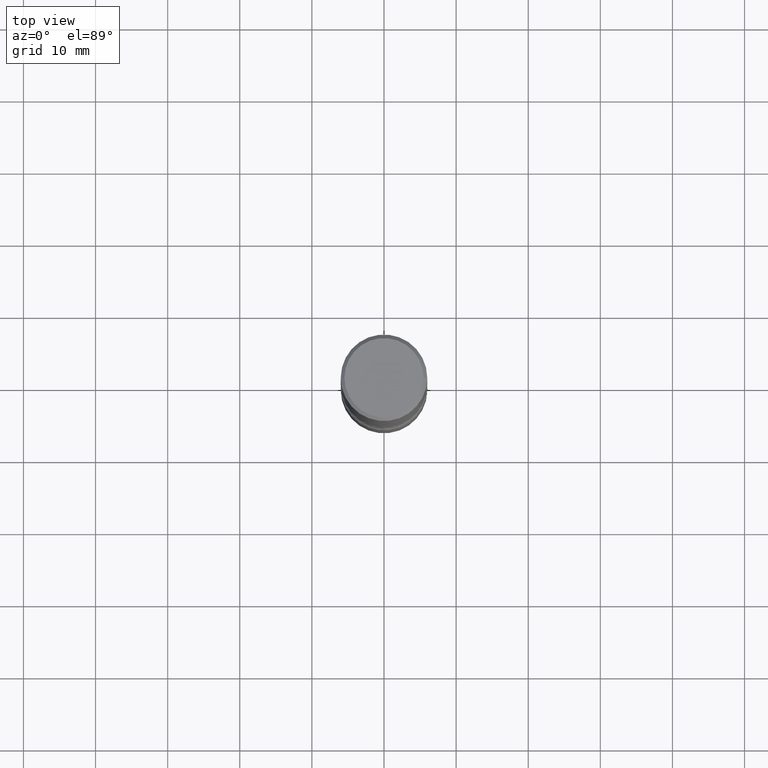
[diagram: clean part render]
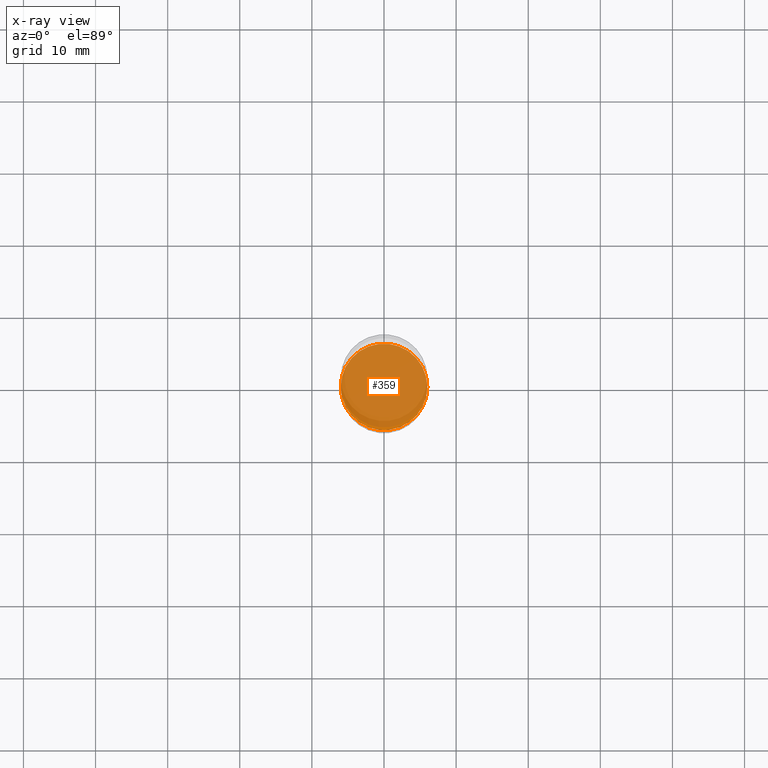
[diagram: x-ray — body ghosted, one internal face saturated and labeled with its STEP entity id]
A machine part, top view, then the same camera in x-ray: the body is ghosted and one INTERNAL B-rep face — a face not visible from any outside direction — is saturated and labeled: STEP entity #359.
In plain terms, the highlighted planar face has unit normal (0, -0, -1).
Its self-contained STEP definition (entity closure, byte-faithful):
#5 = FACE_OUTER_BOUND ( 'NONE', #324, .T. ) ;
#14 = ORIENTED_EDGE ( 'NONE', *, *, #427, .T. ) ;
#25 = DIRECTION ( 'NONE',  ( -2.445468806185136597E-29, 3.491481338843145583E-15, 1.000000000000000000 ) ) ;
#44 = DIRECTION ( 'NONE',  ( -1.000000000000000000, 6.982962677686265922E-15, -4.876176775795935793E-29 ) ) ;
#63 = AXIS2_PLACEMENT_3D ( 'NONE', #522, #341, #44 ) ;
#99 = CIRCLE ( 'NONE', #379, 0.2362000000000001321 ) ;
#111 = ORIENTED_EDGE ( 'NONE', *, *, #474, .T. ) ;
#149 = CARTESIAN_POINT ( 'NONE',  ( 7.124628819939777829E-29, -1.017208173258562247E-14, -2.913400000000000212 ) ) ;
#157 = CIRCLE ( 'NONE', #264, 0.2362000000000001321 ) ;
#163 = VERTEX_POINT ( 'NONE', #289 ) ;
#182 = VERTEX_POINT ( 'NONE', #419 ) ;
#192 = DIRECTION ( 'NONE',  ( 1.000000000000000000, -6.982962677686269077E-15, 0.000000000000000000 ) ) ;
#264 = AXIS2_PLACEMENT_3D ( 'NONE', #356, #280, #398 ) ;
#280 = DIRECTION ( 'NONE',  ( -2.445468806185136597E-29, 3.491481338843145583E-15, 1.000000000000000000 ) ) ;
#289 = CARTESIAN_POINT ( 'NONE',  ( -0.2362000000000001321, -1.014333014925670672E-14, -2.913400000000000212 ) ) ;
#324 = EDGE_LOOP ( 'NONE', ( #14, #111 ) ) ;
#341 = DIRECTION ( 'NONE',  ( 2.438088387897960049E-29, -3.491481338843145188E-15, -1.000000000000000000 ) ) ;
#343 = PLANE ( 'NONE',  #63 ) ;
#356 = CARTESIAN_POINT ( 'NONE',  ( 7.124628819939777829E-29, -1.017208173258562247E-14, -2.913400000000000212 ) ) ;
#359 = ADVANCED_FACE ( 'NONE', ( #5 ), #343, .F. ) ;
#379 = AXIS2_PLACEMENT_3D ( 'NONE', #149, #25, #192 ) ;
#398 = DIRECTION ( 'NONE',  ( 1.000000000000000000, -6.982962677686269077E-15, 0.000000000000000000 ) ) ;
#419 = CARTESIAN_POINT ( 'NONE',  ( 0.2362000000000001321, -1.182145751705511899E-14, -2.913400000000000212 ) ) ;
#427 = EDGE_CURVE ( 'NONE', #182, #163, #157, .T. ) ;
#474 = EDGE_CURVE ( 'NONE', #163, #182, #99, .T. ) ;
#522 = CARTESIAN_POINT ( 'NONE',  ( 7.124628819939777829E-29, -1.017208173258562247E-14, -2.913400000000000212 ) ) ;